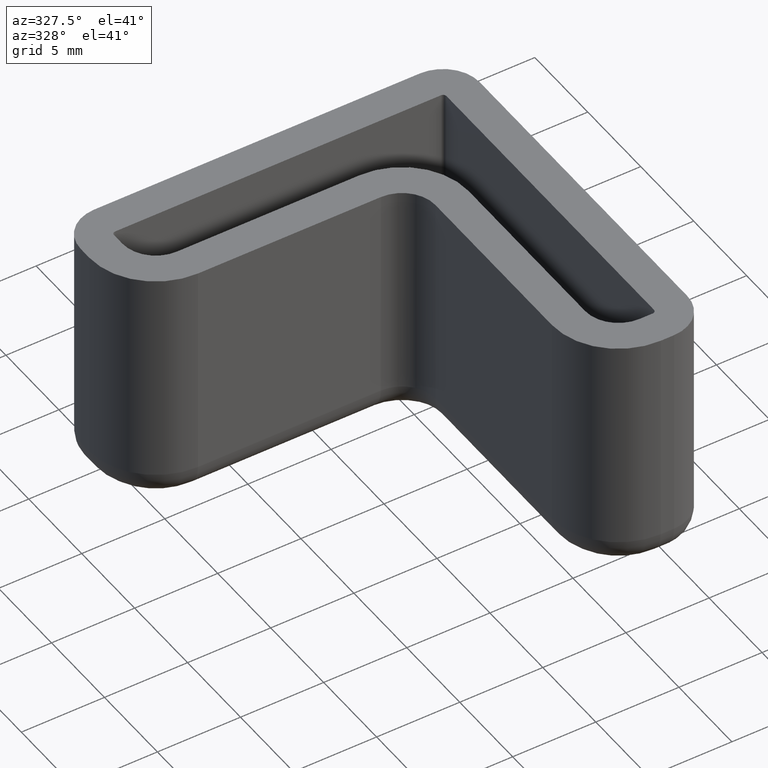
[diagram: clean part render]
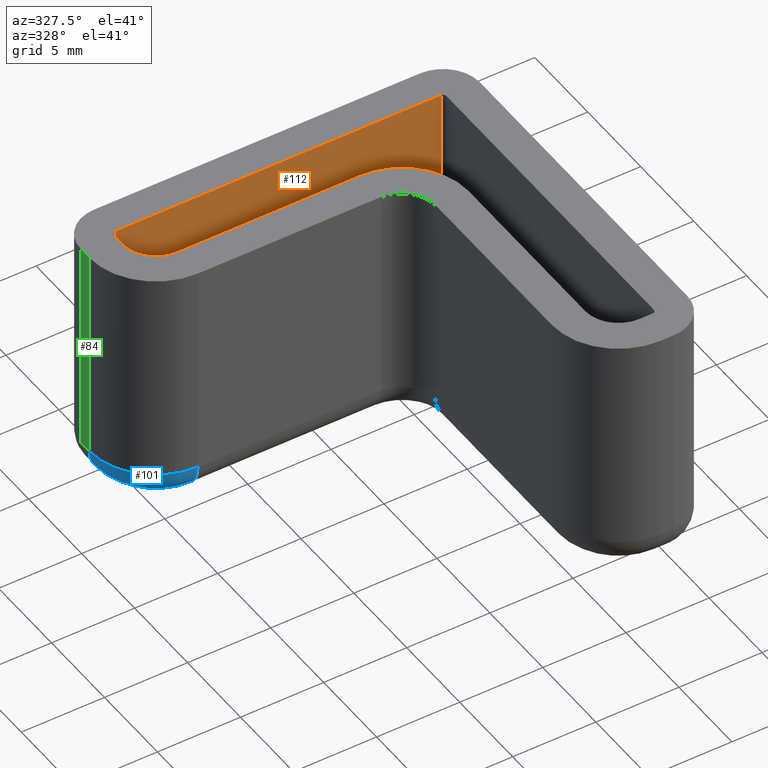
[diagram: same view with three faces highlighted in distinct colors, each labeled with its STEP entity id]
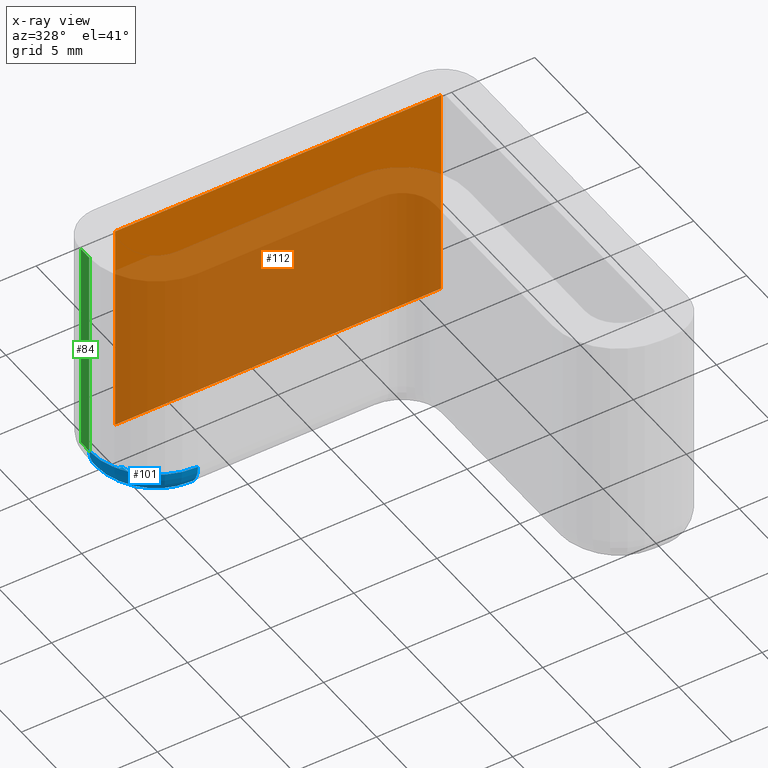
[diagram: x-ray of the same camera — body ghosted, the three highlighted faces saturated]
A machine part, auxiliary view with three faces highlighted in distinct colors.
The next image is the same camera in x-ray (body ghosted, the three faces saturated) — at least one of them is partly hidden behind the body in this view.
Their STEP definitions:

[orange] entity #112 — the highlighted planar face has unit normal (-0, -1, 0).
#112 = ADVANCED_FACE( '', ( #190 ), #191, .T. );
#190 = FACE_OUTER_BOUND( '', #335, .T. );
#191 = PLANE( '', #336 );
#335 = EDGE_LOOP( '', ( #625, #626, #627, #628 ) );
#336 = AXIS2_PLACEMENT_3D( '', #629, #630, #631 );
#625 = ORIENTED_EDGE( '', *, *, #733, .T. );
#626 = ORIENTED_EDGE( '', *, *, #672, .F. );
#627 = ORIENTED_EDGE( '', *, *, #734, .F. );
#628 = ORIENTED_EDGE( '', *, *, #661, .F. );
#629 = CARTESIAN_POINT( '', ( -0.200000000000006, 2.44921270764482E-017, 30.0000000000000 ) );
#630 = DIRECTION( '', ( -1.22460635382238E-016, -1.00000000000000, 0.000000000000000 ) );
#631 = DIRECTION( '', ( 1.00000000000000, -1.22460635382238E-016, 0.000000000000000 ) );
#661 = EDGE_CURVE( '', #778, #780, #781, .T. );
#672 = EDGE_CURVE( '', #796, #798, #799, .T. );
#733 = EDGE_CURVE( '', #778, #798, #889, .T. );
#734 = EDGE_CURVE( '', #780, #796, #890, .T. );
#778 = VERTEX_POINT( '', #945 );
#780 = VERTEX_POINT( '', #947 );
#781 = LINE( '', #948, #949 );
#796 = VERTEX_POINT( '', #970 );
#798 = VERTEX_POINT( '', #972 );
#799 = LINE( '', #973, #974 );
#889 = LINE( '', #1097, #1098 );
#890 = LINE( '', #1099, #1100 );
#945 = CARTESIAN_POINT( '', ( -19.8000000000000, 2.42472058056830E-015, 0.000000000000000 ) );
#947 = CARTESIAN_POINT( '', ( -0.200000000000000, 2.44921270764475E-017, 0.000000000000000 ) );
#948 = CARTESIAN_POINT( '', ( -0.199999999999998, 2.44921270764473E-017, 0.000000000000000 ) );
#949 = VECTOR( '', #1145, 1000.00000000000 );
#970 = CARTESIAN_POINT( '', ( -0.200000000000000, 2.44921270764475E-017, -13.0000000000000 ) );
#972 = CARTESIAN_POINT( '', ( -19.8000000000000, 2.42472058056830E-015, -13.0000000000000 ) );
#973 = CARTESIAN_POINT( '', ( -0.200000000000006, 2.44921270764482E-017, -13.0000000000000 ) );
#974 = VECTOR( '', #1164, 1000.00000000000 );
#1097 = CARTESIAN_POINT( '', ( -19.8000000000000, 2.42472058056830E-015, 30.0000000000000 ) );
#1098 = VECTOR( '', #1279, 1000.00000000000 );
#1099 = CARTESIAN_POINT( '', ( -0.200000000000000, 2.44921270764475E-017, 30.0000000000000 ) );
#1100 = VECTOR( '', #1280, 1000.00000000000 );
#1145 = DIRECTION( '', ( 1.00000000000000, -1.22460635382238E-016, 0.000000000000000 ) );
#1164 = DIRECTION( '', ( -1.00000000000000, 1.22460635382238E-016, 0.000000000000000 ) );
#1279 = DIRECTION( '', ( 0.000000000000000, 0.000000000000000, -1.00000000000000 ) );
#1280 = DIRECTION( '', ( 0.000000000000000, 0.000000000000000, -1.00000000000000 ) );

[blue] entity #101 — the highlighted toroidal blend (fillet) surface has major radius 2 mm and minor (blend) radius 2 mm.
#101 = ADVANCED_FACE( '', ( #168 ), #169, .T. );
#168 = FACE_OUTER_BOUND( '', #313, .T. );
#169 = TOROIDAL_SURFACE( '', #314, 2.00000000000000, 2.00000000000000 );
#313 = EDGE_LOOP( '', ( #548, #549, #550, #551 ) );
#314 = AXIS2_PLACEMENT_3D( '', #552, #553, #554 );
#548 = ORIENTED_EDGE( '', *, *, #724, .T. );
#549 = ORIENTED_EDGE( '', *, *, #691, .F. );
#550 = ORIENTED_EDGE( '', *, *, #722, .F. );
#551 = ORIENTED_EDGE( '', *, *, #710, .F. );
#552 = CARTESIAN_POINT( '', ( -18.0000000000000, -1.00000000000000, -13.0000000000000 ) );
#553 = DIRECTION( '', ( 0.000000000000000, 0.000000000000000, 1.00000000000000 ) );
#554 = DIRECTION( '', ( -1.00000000000000, 1.22460635382238E-016, 0.000000000000000 ) );
#691 = EDGE_CURVE( '', #827, #830, #831, .T. );
#710 = EDGE_CURVE( '', #861, #863, #864, .F. );
#722 = EDGE_CURVE( '', #863, #827, #878, .T. );
#724 = EDGE_CURVE( '', #861, #830, #880, .T. );
#827 = VERTEX_POINT( '', #1012 );
#830 = VERTEX_POINT( '', #1017 );
#831 = CIRCLE( '', #1018, 4.00000000000000 );
#861 = VERTEX_POINT( '', #1059 );
#863 = VERTEX_POINT( '', #1062 );
#864 = CIRCLE( '', #1063, 2.00000000000000 );
#878 = CIRCLE( '', #1079, 2.00000000000000 );
#880 = CIRCLE( '', #1081, 2.00000000000000 );
#1012 = CARTESIAN_POINT( '', ( -22.0000000000000, -1.00000000000001, -13.0000000000000 ) );
#1017 = CARTESIAN_POINT( '', ( -18.0000000000000, -5.00000000000000, -13.0000000000000 ) );
#1018 = AXIS2_PLACEMENT_3D( '', #1195, #1196, #1197 );
#1059 = CARTESIAN_POINT( '', ( -18.0000000000000, -3.00000000000000, -15.0000000000000 ) );
#1062 = CARTESIAN_POINT( '', ( -20.0000000000000, -1.00000000000000, -15.0000000000000 ) );
#1063 = AXIS2_PLACEMENT_3D( '', #1228, #1229, #1230 );
#1079 = AXIS2_PLACEMENT_3D( '', #1260, #1261, #1262 );
#1081 = AXIS2_PLACEMENT_3D( '', #1266, #1267, #1268 );
#1195 = CARTESIAN_POINT( '', ( -18.0000000000000, -1.00000000000000, -13.0000000000000 ) );
#1196 = DIRECTION( '', ( 0.000000000000000, 0.000000000000000, 1.00000000000000 ) );
#1197 = DIRECTION( '', ( -1.00000000000000, 1.22460635382238E-016, 0.000000000000000 ) );
#1228 = CARTESIAN_POINT( '', ( -18.0000000000000, -1.00000000000000, -15.0000000000000 ) );
#1229 = DIRECTION( '', ( 0.000000000000000, 0.000000000000000, 1.00000000000000 ) );
#1230 = DIRECTION( '', ( -1.00000000000000, 1.22460635382238E-016, 0.000000000000000 ) );
#1260 = CARTESIAN_POINT( '', ( -20.0000000000000, -1.00000000000000, -13.0000000000000 ) );
#1261 = DIRECTION( '', ( -7.44901102606167E-016, 1.00000000000000, 0.000000000000000 ) );
#1262 = DIRECTION( '', ( -1.00000000000000, -7.44901102606167E-016, 0.000000000000000 ) );
#1266 = CARTESIAN_POINT( '', ( -18.0000000000000, -3.00000000000000, -13.0000000000000 ) );
#1267 = DIRECTION( '', ( -1.00000000000000, 1.22460635382238E-016, 0.000000000000000 ) );
#1268 = DIRECTION( '', ( 0.000000000000000, 0.000000000000000, -1.00000000000000 ) );

[green] entity #84 — the highlighted planar face has unit normal (-1, 0, 0).
#84 = ADVANCED_FACE( '', ( #134 ), #135, .T. );
#134 = FACE_OUTER_BOUND( '', #213, .T. );
#135 = PLANE( '', #214 );
#213 = EDGE_LOOP( '', ( #430, #431, #432, #433 ) );
#214 = AXIS2_PLACEMENT_3D( '', #434, #435, #436 );
#430 = ORIENTED_EDGE( '', *, *, #688, .F. );
#431 = ORIENTED_EDGE( '', *, *, #689, .T. );
#432 = ORIENTED_EDGE( '', *, *, #690, .T. );
#433 = ORIENTED_EDGE( '', *, *, #644, .F. );
#434 = CARTESIAN_POINT( '', ( -22.0000000000000, -0.200000000000003, -15.0000000000000 ) );
#435 = DIRECTION( '', ( -1.00000000000000, 1.91849574421310E-016, 0.000000000000000 ) );
#436 = DIRECTION( '', ( 1.91849574421310E-016, 1.00000000000000, 0.000000000000000 ) );
#644 = EDGE_CURVE( '', #744, #746, #747, .T. );
#688 = EDGE_CURVE( '', #824, #744, #826, .T. );
#689 = EDGE_CURVE( '', #824, #827, #828, .T. );
#690 = EDGE_CURVE( '', #827, #746, #829, .T. );
#744 = VERTEX_POINT( '', #902 );
#746 = VERTEX_POINT( '', #904 );
#747 = LINE( '', #905, #906 );
#824 = VERTEX_POINT( '', #1008 );
#826 = LINE( '', #1010, #1011 );
#827 = VERTEX_POINT( '', #1012 );
#828 = LINE( '', #1013, #1014 );
#829 = LINE( '', #1015, #1016 );
#902 = CARTESIAN_POINT( '', ( -22.0000000000000, -0.200000000000000, 0.000000000000000 ) );
#904 = CARTESIAN_POINT( '', ( -22.0000000000000, -1.00000000000001, 0.000000000000000 ) );
#905 = CARTESIAN_POINT( '', ( -22.0000000000000, -0.200000000000003, 0.000000000000000 ) );
#906 = VECTOR( '', #1112, 1000.00000000000 );
#1008 = CARTESIAN_POINT( '', ( -22.0000000000000, -0.200000000000000, -13.0000000000000 ) );
#1010 = CARTESIAN_POINT( '', ( -22.0000000000000, -0.200000000000000, -15.0000000000000 ) );
#1011 = VECTOR( '', #1192, 1000.00000000000 );
#1012 = CARTESIAN_POINT( '', ( -22.0000000000000, -1.00000000000001, -13.0000000000000 ) );
#1013 = CARTESIAN_POINT( '', ( -22.0000000000000, -1.00000000000001, -13.0000000000000 ) );
#1014 = VECTOR( '', #1193, 1000.00000000000 );
#1015 = CARTESIAN_POINT( '', ( -22.0000000000000, -1.00000000000001, -15.0000000000000 ) );
#1016 = VECTOR( '', #1194, 1000.00000000000 );
#1112 = DIRECTION( '', ( -1.91849574421310E-016, -1.00000000000000, 0.000000000000000 ) );
#1192 = DIRECTION( '', ( 0.000000000000000, 0.000000000000000, 1.00000000000000 ) );
#1193 = DIRECTION( '', ( -1.91849574421310E-016, -1.00000000000000, 0.000000000000000 ) );
#1194 = DIRECTION( '', ( 0.000000000000000, 0.000000000000000, 1.00000000000000 ) );